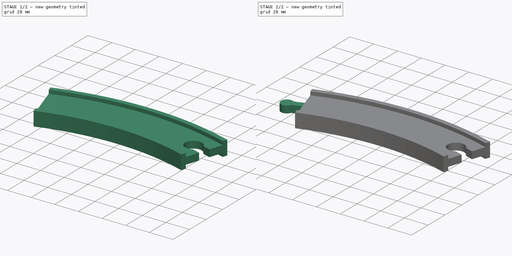
[diagram: build sequence overview — one tinted view per stage of 2, left to right]
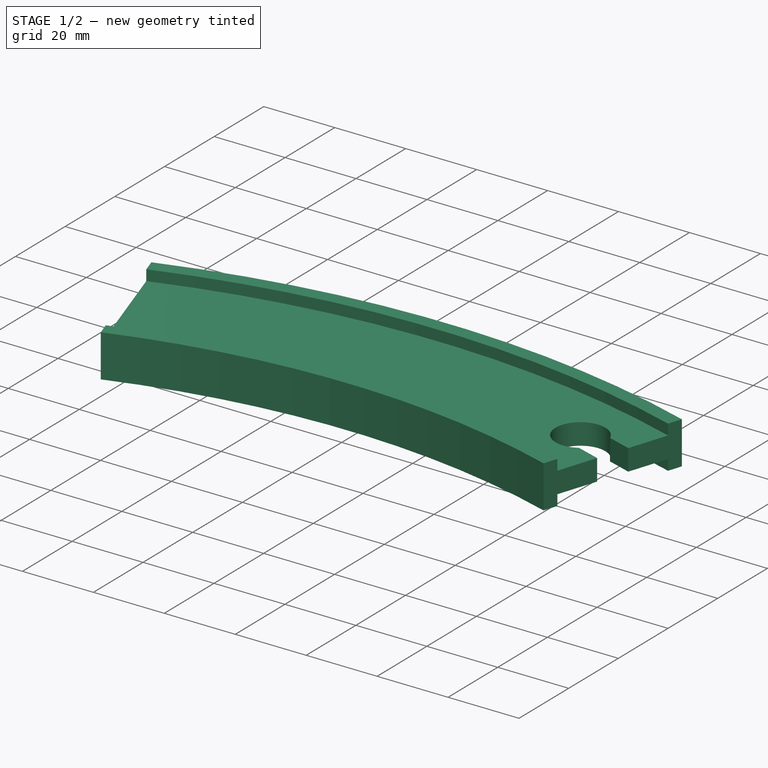
[diagram: stage 1 of 2 — iso view after this stage's code; geometry added in this stage tinted green]
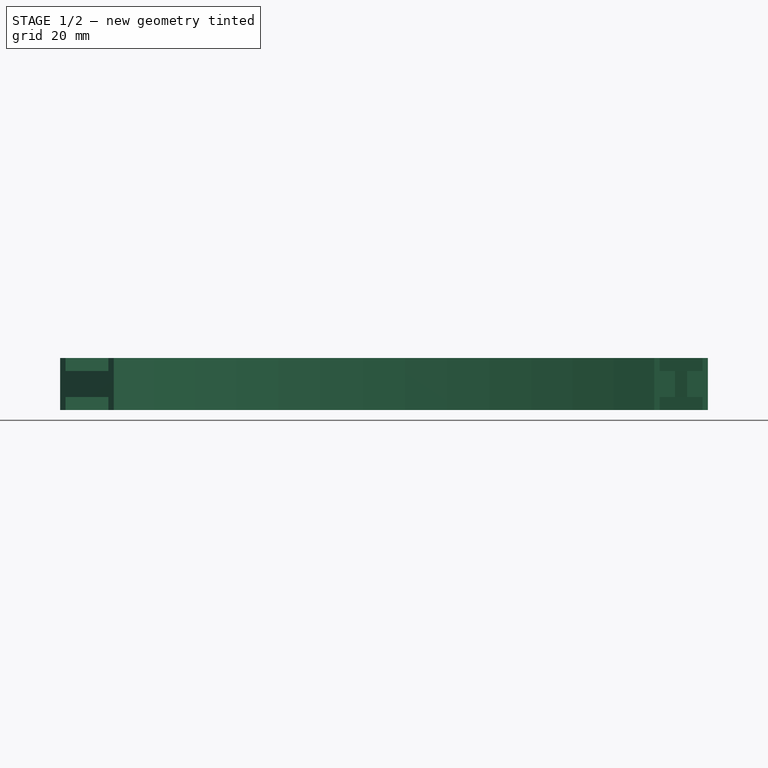
[diagram: stage 1 of 2 — front view after this stage's code; geometry added in this stage tinted green]
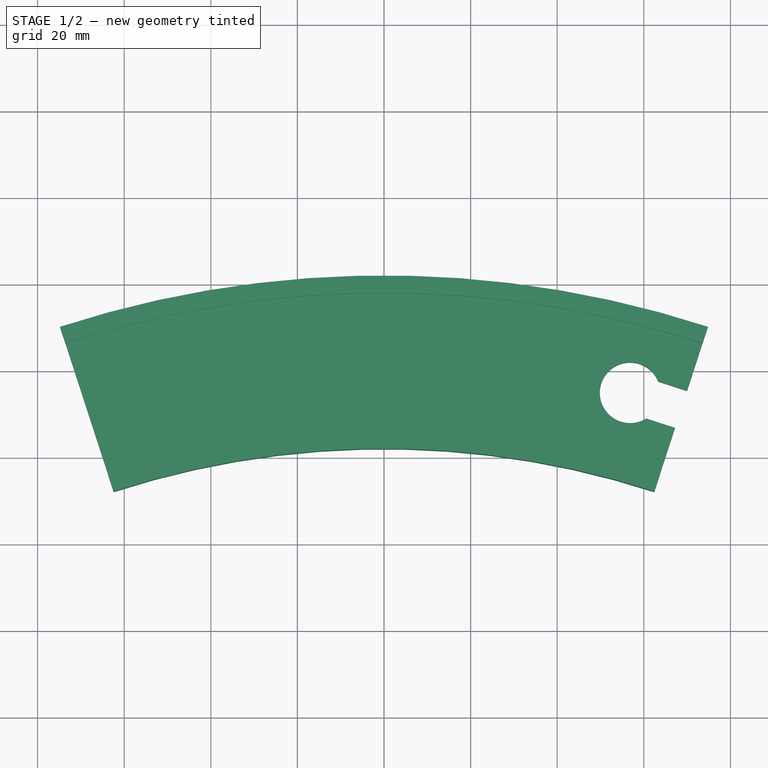
[diagram: stage 1 of 2 — top view after this stage's code; geometry added in this stage tinted green]
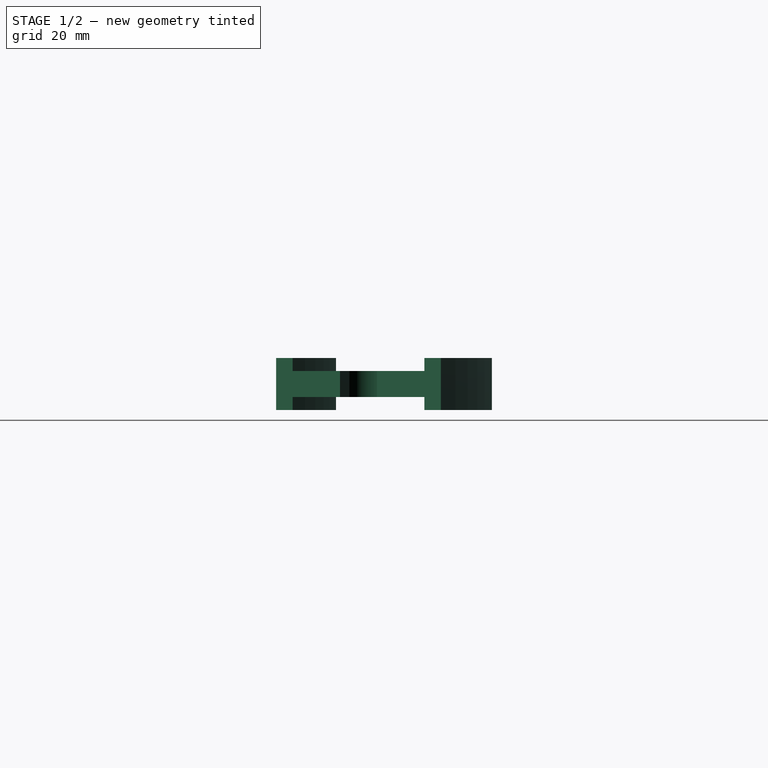
[diagram: stage 1 of 2 — right view after this stage's code; geometry added in this stage tinted green]
FCSTD DOCUMENT  (FreeCAD 0.19R24291 (Git))
Label: 222mm R 36degree road curve mk2
License: All rights reserved
LicenseURL: http://en.wikipedia.org/wiki/All_rights_reserved
objects: Sketcher::SketchObject×4, PartDesign::ShapeBinder×3, PartDesign::Body×2, PartDesign::Plane×1, PartDesign::AdditivePipe×1, PartDesign::Point×1, PartDesign::Pad×1, PartDesign::Pocket×1
note: 17 computed .brp shape members not serialized (recipe doc carries the construction recipe); baked Part::Feature solids carry a one-line shape summary decoded from their .brp

FEATURE [Sketcher::SketchObject] Sketch
  FullyConstrained = true
  MapMode = 5
  Support = -> [XY_Plane]
  sketch-geometry (7):
    g0: Circle CenterX=0 CenterY=0 CenterZ=0 NormalX=0 NormalY=0 NormalZ=1 AngleXU=0 Radius=222
    g1: LineSegment StartX=0 StartY=0 StartZ=0 EndX=68.6018 EndY=211.135 EndZ=0
    g2: LineSegment StartX=0 StartY=0 StartZ=0 EndX=-68.6018 EndY=211.135 EndZ=0
    g3: ArcOfCircle CenterX=0 CenterY=0 CenterZ=0 NormalX=0 NormalY=0 NormalZ=1 AngleXU=0 Radius=222 StartAngle=1.25664 EndAngle=1.88496
    g4: LineSegment StartX=0 StartY=0 StartZ=0 EndX=0 EndY=222 EndZ=0
    g5: LineSegment StartX=0 StartY=222 StartZ=0 EndX=68.6018 EndY=211.135 EndZ=0
    g6: LineSegment StartX=0 StartY=222 StartZ=0 EndX=-68.6018 EndY=211.135 EndZ=0
  constraints (17):
    c: Coincident(g0,g-1)
    c: Radius(g0) = 222
    c: Coincident(g1,g-1)
    c: PointOnObject(g1,g0)
    c: Coincident(g2,g-1)
    c: Angle(g1,g2) = 0.628319
    c: Coincident(g3,g-1)
    c: Coincident(g3,g1)
    c: Coincident(g3,g2)
    c: Coincident(g4,g3)
    c: PointOnObject(g4,g3)
    c: Vertical(g4)
    c: Coincident(g5,g4)
    c: Coincident(g5,g3)
    c: Coincident(g6,g4)
    c: Coincident(g6,g3)
    c: Equal(g5,g6)
FEATURE [PartDesign::Plane] DatumPlane
  Length = 276.019
  MapMode = 8
  Placement = pos=(-68.6018,211.135,0) rot=(0.456966,0.62896,0.62896;2.28433rad)
  ResizeMode = 0
  Support = -> [Sketch]
  Width = 72.5167
FEATURE [Sketcher::SketchObject] Sketch002
  FullyConstrained = true
  MapMode = 5
  Placement = pos=(-68.6018,211.135,0) rot=(0.456966,0.62896,0.62896;2.28433rad)
  Support = -> [DatumPlane]
  sketch-geometry (30):
    g0: LineSegment StartX=-20 StartY=6 StartZ=0 EndX=-20 EndY=-6 EndZ=0
    g1: LineSegment StartX=-20 StartY=-6 StartZ=0 EndX=-16 EndY=-6 EndZ=0
    g2: LineSegment StartX=-16 StartY=-6 StartZ=0 EndX=-16 EndY=-3 EndZ=0
    g3: LineSegment StartX=-16 StartY=-3 StartZ=0 EndX=-9 EndY=-3 EndZ=0
    g4: LineSegment StartX=-9 StartY=-3 StartZ=0 EndX=-9 EndY=-6 EndZ=0
    g5: LineSegment StartX=-9 StartY=-6 StartZ=0 EndX=9 EndY=-6 EndZ=0
    g6: LineSegment StartX=9 StartY=-6 StartZ=0 EndX=9 EndY=-3 EndZ=0
    g7: LineSegment StartX=9 StartY=-3 StartZ=0 EndX=16 EndY=-3 EndZ=0
    g8: LineSegment StartX=16 StartY=-3 StartZ=0 EndX=16 EndY=-6 EndZ=0
    g9: LineSegment StartX=16 StartY=-6 StartZ=0 EndX=20 EndY=-6 EndZ=0
    g10: LineSegment StartX=20 StartY=-6 StartZ=0 EndX=20 EndY=6 EndZ=0
    g11: LineSegment StartX=20 StartY=6 StartZ=0 EndX=16 EndY=6 EndZ=0
    g12: LineSegment StartX=16 StartY=6 StartZ=0 EndX=16 EndY=3 EndZ=0
    g13: LineSegment StartX=16 StartY=3 StartZ=0 EndX=9 EndY=3 EndZ=0
    g14: LineSegment StartX=9 StartY=3 StartZ=0 EndX=9 EndY=6 EndZ=0
    g15: LineSegment StartX=9 StartY=6 StartZ=0 EndX=-9 EndY=6 EndZ=0
    g16: LineSegment StartX=-9 StartY=6 StartZ=0 EndX=-9 EndY=3 EndZ=0
    g17: LineSegment StartX=-9 StartY=3 StartZ=0 EndX=-16 EndY=3 EndZ=0
    g18: LineSegment StartX=-16 StartY=3 StartZ=0 EndX=-16 EndY=6 EndZ=0
    g19: LineSegment StartX=-16 StartY=6 StartZ=0 EndX=-20 EndY=6 EndZ=0
    g20: LineSegment StartX=9 StartY=6 StartZ=0 EndX=16 EndY=6 EndZ=0
    g21: LineSegment StartX=-9 StartY=6 StartZ=0 EndX=-16 EndY=6 EndZ=0
    g22: LineSegment StartX=-16 StartY=-6 StartZ=0 EndX=-9 EndY=-6 EndZ=0
    g23: LineSegment StartX=16 StartY=-3 StartZ=0 EndX=16 EndY=3 EndZ=0
    g24: LineSegment StartX=-9 StartY=3 StartZ=0 EndX=9 EndY=3 EndZ=0
    g25: LineSegment StartX=-9 StartY=-3 StartZ=0 EndX=9 EndY=-3 EndZ=0
    g26: LineSegment StartX=-20 StartY=6 StartZ=0 EndX=20 EndY=-6 EndZ=0
    g27: LineSegment StartX=-20 StartY=-6 StartZ=0 EndX=20 EndY=6 EndZ=0
    g28: LineSegment StartX=-9 StartY=3 StartZ=0 EndX=9 EndY=3 EndZ=0
    g29: LineSegment StartX=9 StartY=-3 StartZ=0 EndX=-9 EndY=-3 EndZ=0
  constraints (80):
    c: Coincident(g1,g0)
    c: Horizontal(g1)
    c: Coincident(g2,g1)
    c: Vertical(g2)
    c: Coincident(g3,g2)
    c: Horizontal(g3)
    c: Coincident(g4,g3)
    c: Coincident(g5,g4)
    c: Horizontal(g5)
    c: Coincident(g6,g5)
    c: Coincident(g7,g6)
    c: Horizontal(g7)
    c: Coincident(g8,g7)
    c: Coincident(g9,g8)
    c: Coincident(g10,g9)
    c: Coincident(g11,g10)
    c: Coincident(g12,g11)
    c: Coincident(g13,g12)
    c: Coincident(g14,g13)
    c: Vertical(g14)
    c: Coincident(g15,g14)
    c: Coincident(g16,g15)
    c: Coincident(g17,g16)
    c: Horizontal(g17)
    c: Coincident(g18,g17)
    c: Vertical(g18)
    c: Coincident(g19,g18)
    c: Coincident(g19,g0)
    c: Horizontal(g19)
    c: Horizontal(g15)
    c: Horizontal(g13)
    c: Horizontal(g11)
    c: Horizontal(g9)
    c: Vertical(g0)
    c: Vertical(g16)
    c: Vertical(g12)
    c: Vertical(g10)
    c: Vertical(g8)
    c: Vertical(g6)
    c: Vertical(g4)
    c: Equal(g0,g10)
    c: Equal(g3,g17)
    c: Equal(g3,g13)
    c: Equal(g3,g7)
    c: Equal(g5,g15)
    c: DistanceY(g0,g0) = 12
    c: DistanceX(g1,g1) = 4
    c: Equal(g1,g9)
    c: DistanceX(g3,g3) = 7
    c: DistanceX(g5,g5) = 18
    c: Coincident(g20,g14)
    c: Coincident(g20,g11)
    c: Coincident(g21,g15)
    c: Coincident(g21,g18)
    c: Coincident(g22,g1)
    c: Coincident(g22,g4)
    c: Horizontal(g22)
    c: Horizontal(g21)
    c: Horizontal(g20)
    c: Coincident(g23,g7)
    c: Coincident(g23,g12)
    c: Vertical(g23)
    c: DistanceY(g8,g7) = 3
    c: DistanceY(g7,g12) = 6
    c: Coincident(g24,g16)
    c: Coincident(g24,g13)
    c: Horizontal(g24)
    c: Coincident(g25,g3)
    c: Coincident(g25,g6)
    c: Horizontal(g25)
    c: Coincident(g26,g0)
    c: Coincident(g26,g9)
    c: Coincident(g27,g0)
    c: Coincident(g27,g10)
    c: PointOnObject(g-1,g26)
    c: PointOnObject(g-1,g27)
    c: Coincident(g28,g17)
    c: Coincident(g28,g13)
    c: Coincident(g29,g7)
    c: Coincident(g29,g3)
FEATURE [PartDesign::AdditivePipe] AdditivePipe
  AuxilleryCurvelinear = true
  AuxillerySpineTangent = false
  Binormal = (0,0,0)
  Mode = 0
  Placement = pos=(-68.6018,211.135,0) rot=(0.456966,0.62896,0.62896;2.28433rad)
  Profile = -> Sketch002
  Spine = -> Sketch
  SpineTangent = false
  Transformation = 0
  Transition = 0
FEATURE [PartDesign::Body] Body001
  Group = -> [Sketch003,DatumPoint,CopyAdditivePipe,CopyAdditivePipe001,CopyAdditivePipe002,Pad]
  Origin = -> Origin001
  Tip = -> Pad
FEATURE [Sketcher::SketchObject] Sketch004
  ExternalGeometry = -> [AdditivePipe]
  FullyConstrained = true
  MapMode = 5
  Placement = pos=(-68.6018,211.135,3) rot=(0,0,-1;1.25664rad)
  Support = -> [AdditivePipe]
  sketch-geometry (6):
    g0: LineSegment StartX=35.1171 StartY=135.778 StartZ=0 EndX=38.7577 EndY=133.133 EndZ=0
    g1: LineSegment StartX=49.6794 StartY=125.198 StartZ=0 EndX=46.0388 EndY=127.843 EndZ=0
    g2: LineSegment StartX=38.7577 StartY=133.133 StartZ=0 EndX=46.0388 EndY=127.843 EndZ=0
    g3: LineSegment StartX=46.0388 StartY=127.843 StartZ=0 EndX=41.9243 EndY=122.18 EndZ=0
    g4: LineSegment StartX=38.7577 StartY=133.133 StartZ=0 EndX=34.6432 EndY=127.47 EndZ=0
    g5: ArcOfCircle CenterX=35.1321 CenterY=120.487 CenterZ=0 NormalX=0 NormalY=0 NormalZ=1 AngleXU=0 Radius=7 StartAngle=1.6407 EndAngle=6.52744
  constraints (17):
    c: Coincident(g0,g-3)
    c: PointOnObject(g0,g-3)
    c: Coincident(g1,g-3)
    c: PointOnObject(g1,g-3)
    c: Coincident(g2,g0)
    c: Coincident(g2,g1)
    c: Coincident(g3,g2)
    c: Coincident(g4,g2)
    c: Equal(g4,g3)
    c: Distance(g4) = 7
    c: Distance(g2) = 9
    c: Equal(g0,g1)
    c: Angle(g4,g2) = 1.5708
    c: Angle(g2,g3) = 1.5708
    c: Diameter(g5) = 14
    c: Coincident(g5,g4)
    c: Coincident(g5,g3)
FEATURE [PartDesign::Pocket] Pocket
  BaseFeature = -> AdditivePipe
  Length = 5
  Length2 = 100
  Placement = pos=(-68.6018,211.135,0) rot=(0.456966,0.62896,0.62896;2.28433rad)
  Profile = -> Sketch004
  Type = 1
FEATURE [PartDesign::Body] Body
  Group = -> [Sketch,DatumPlane,Sketch002,AdditivePipe,Sketch004,Pocket]
  Origin = -> Origin
  Tip = -> Pocket
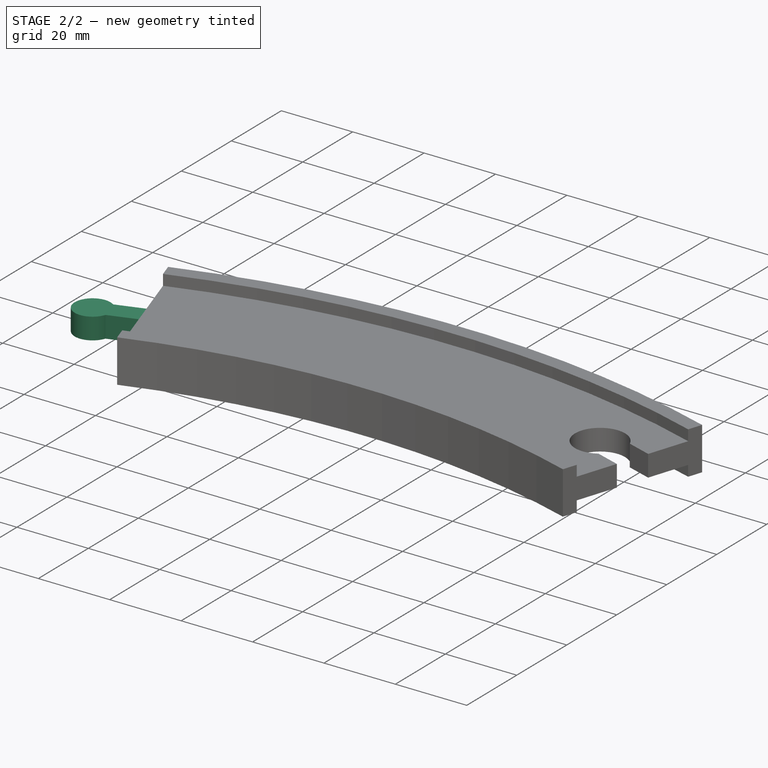
[diagram: stage 2 of 2 — iso view after this stage's code; geometry added in this stage tinted green]
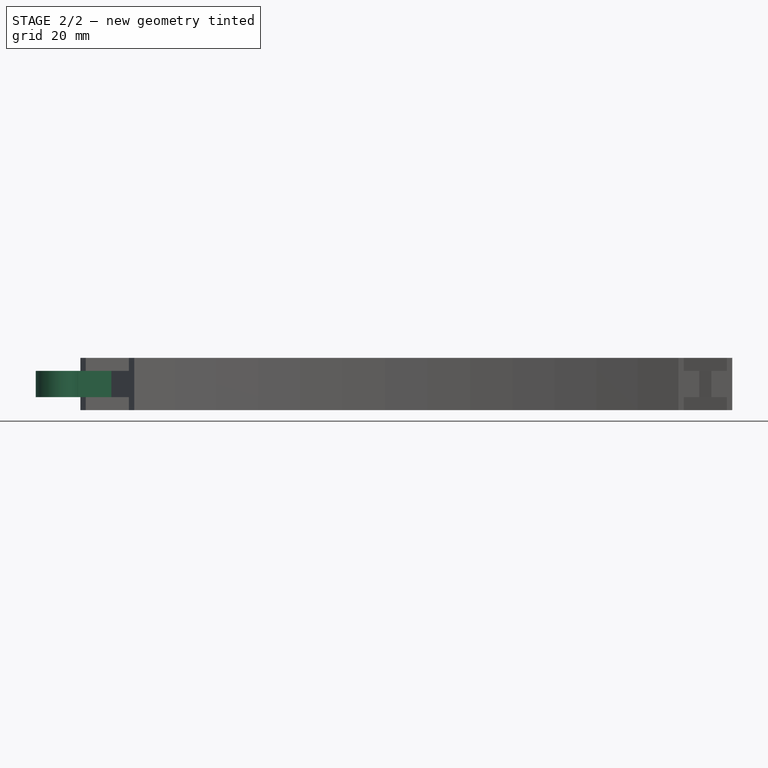
[diagram: stage 2 of 2 — front view after this stage's code; geometry added in this stage tinted green]
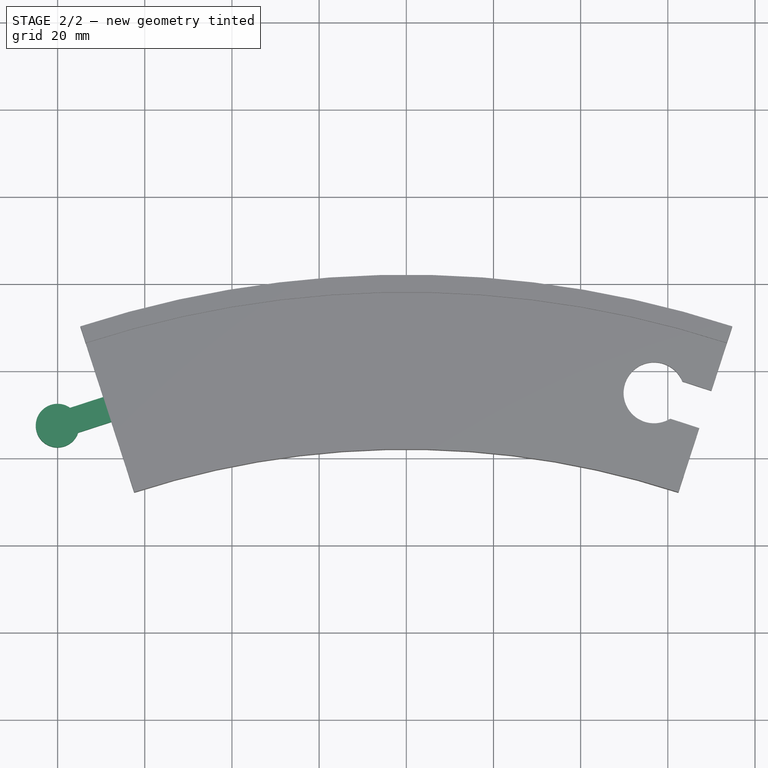
[diagram: stage 2 of 2 — top view after this stage's code; geometry added in this stage tinted green]
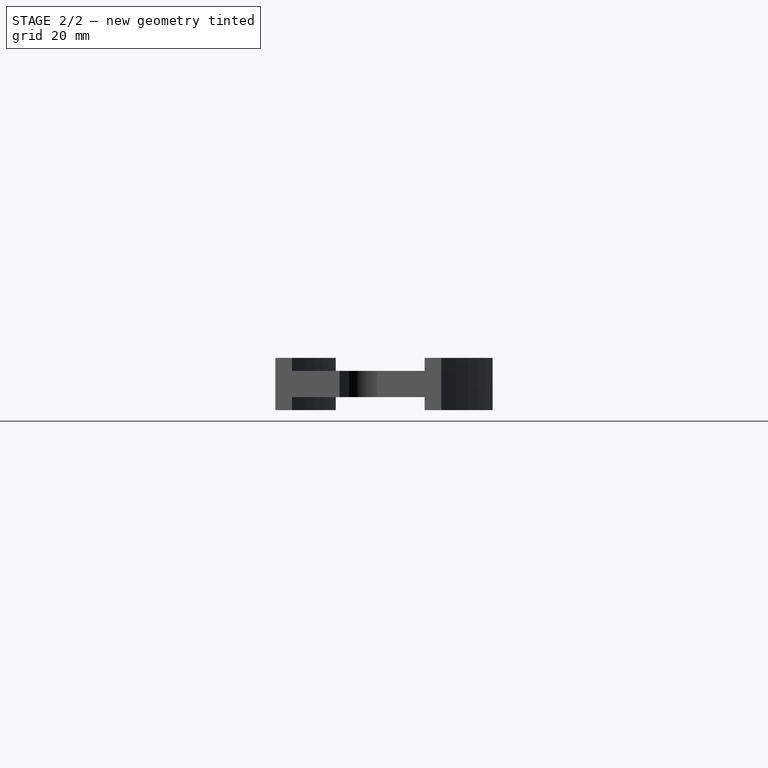
[diagram: stage 2 of 2 — right view after this stage's code; geometry added in this stage tinted green]
FEATURE [PartDesign::ShapeBinder] CopyAdditivePipe
  Placement = pos=(-68.6018,211.135,0) rot=(0.456966,0.62896,0.62896;2.28433rad)
  TraceSupport = false
FEATURE [PartDesign::ShapeBinder] CopyAdditivePipe001
  Placement = pos=(-68.6018,211.135,0) rot=(0.456966,0.62896,0.62896;2.28433rad)
  TraceSupport = false
FEATURE [PartDesign::ShapeBinder] CopyAdditivePipe002
  Placement = pos=(-68.6018,211.135,0) rot=(0.456966,0.62896,0.62896;2.28433rad)
  TraceSupport = false
FEATURE [PartDesign::Point] DatumPoint
  AttacherType = Attacher::AttachEnginePoint
  MapMode = 37
  Placement = pos=(-68.6018,211.135,5.625) rot=(0,0,1;0rad)
  Support = -> [CopyAdditivePipe,CopyAdditivePipe001,CopyAdditivePipe002]
FEATURE [Sketcher::SketchObject] Sketch003
  ExternalGeometry = -> [DatumPoint,CopyAdditivePipe]
  FullyConstrained = true
  MapMode = 5
  Support = -> [XY_Plane001]
  sketch-geometry (5):
    g0: LineSegment StartX=-68.6018 StartY=211.135 StartZ=0 EndX=-67.6747 EndY=208.281 EndZ=0
    g1: LineSegment StartX=-68.6018 StartY=211.135 StartZ=0 EndX=-69.5288 EndY=213.988 EndZ=0
    g2: LineSegment StartX=-69.5288 StartY=213.988 StartZ=0 EndX=-77.1373 EndY=211.516 EndZ=0
    g3: LineSegment StartX=-67.6747 StartY=208.281 StartZ=0 EndX=-75.2832 EndY=205.809 EndZ=0
    g4: ArcOfCircle CenterX=-80.0145 CenterY=207.426 CenterZ=0 NormalX=0 NormalY=0 NormalZ=1 AngleXU=0 Radius=5 StartAngle=0.95766 EndAngle=5.95384
  constraints (15):
    c: Coincident(g0,g-3)
    c: Coincident(g1,g0)
    c: Angle(g0,g1) = 3.14159
    c: Angle(g-4,g1) = 0
    c: Equal(g1,g0)
    c: Distance(g1) = 3
    c: Coincident(g2,g1)
    c: Coincident(g3,g0)
    c: Angle(g2,g1) = 1.5708
    c: Distance(g2) = 8
    c: Equal(g2,g3)
    c: Diameter(g4) = 10
    c: Coincident(g4,g2)
    c: Coincident(g4,g3)
    c: Angle(g0,g3) = 1.5708
FEATURE [PartDesign::Pad] Pad
  Direction = (1,1,1)
  Length = 6
  Length2 = 100
  Midplane = true
  Profile = -> Sketch003
  Type = 0
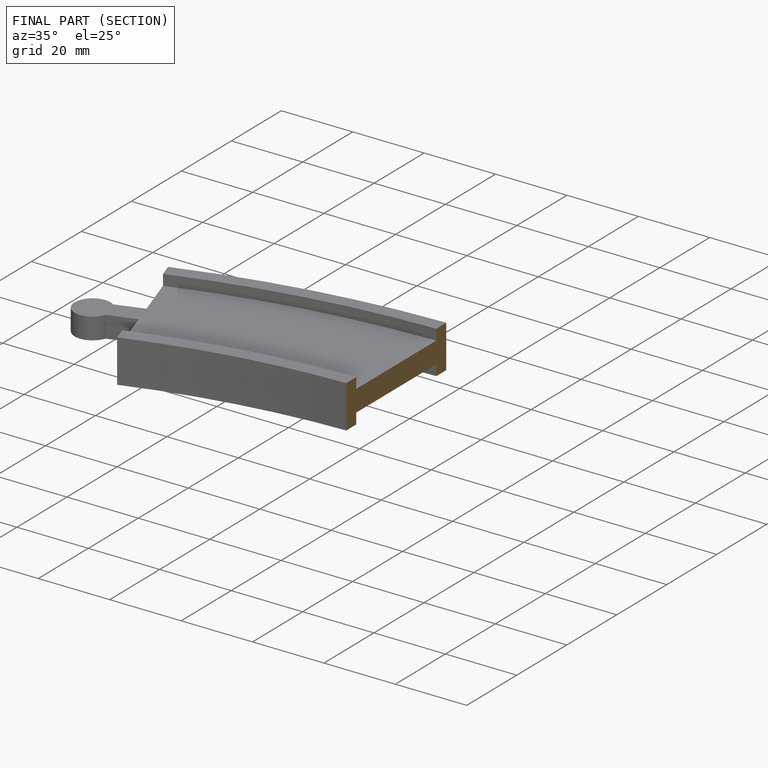
[diagram: finished part — half-section view (interior)]
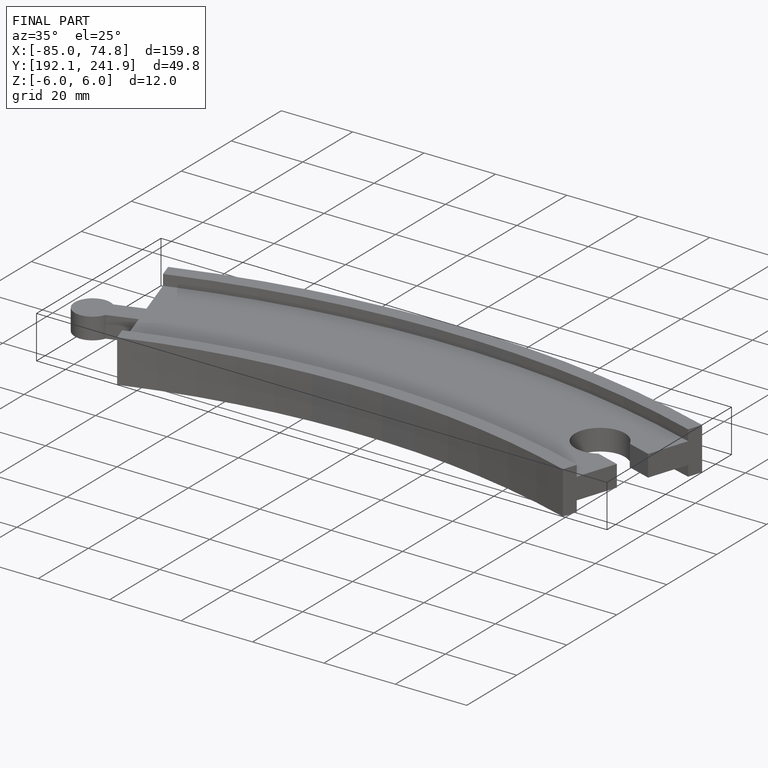
[diagram: finished part — iso view with bounding-box wireframe]
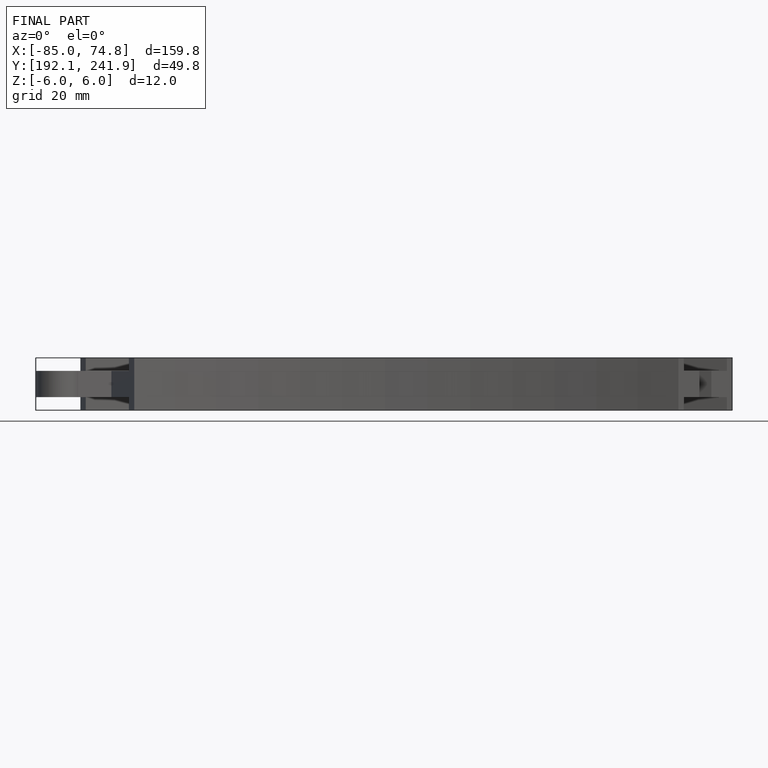
[diagram: finished part — front view with bounding-box wireframe]
